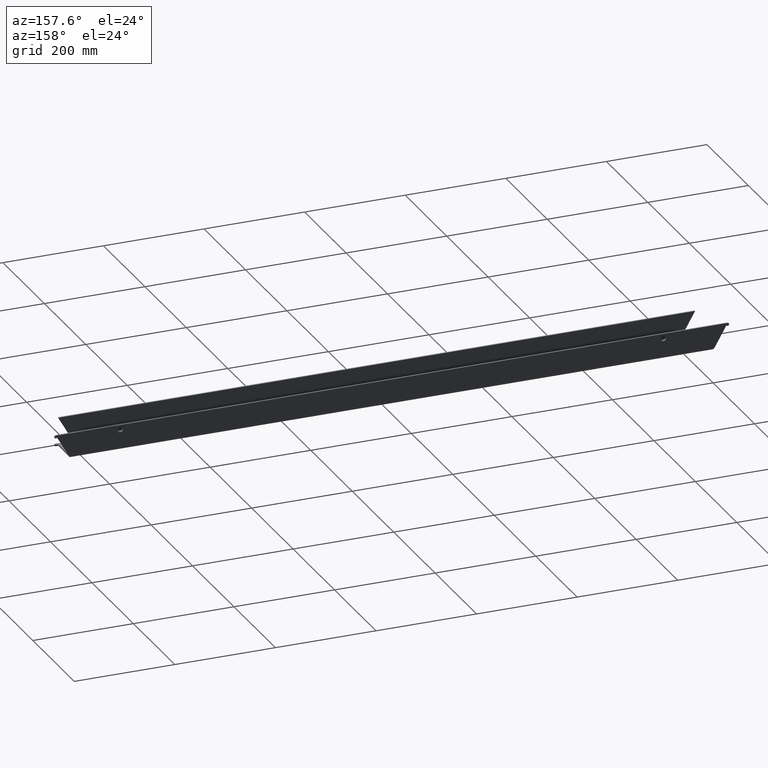
[diagram: clean part render]
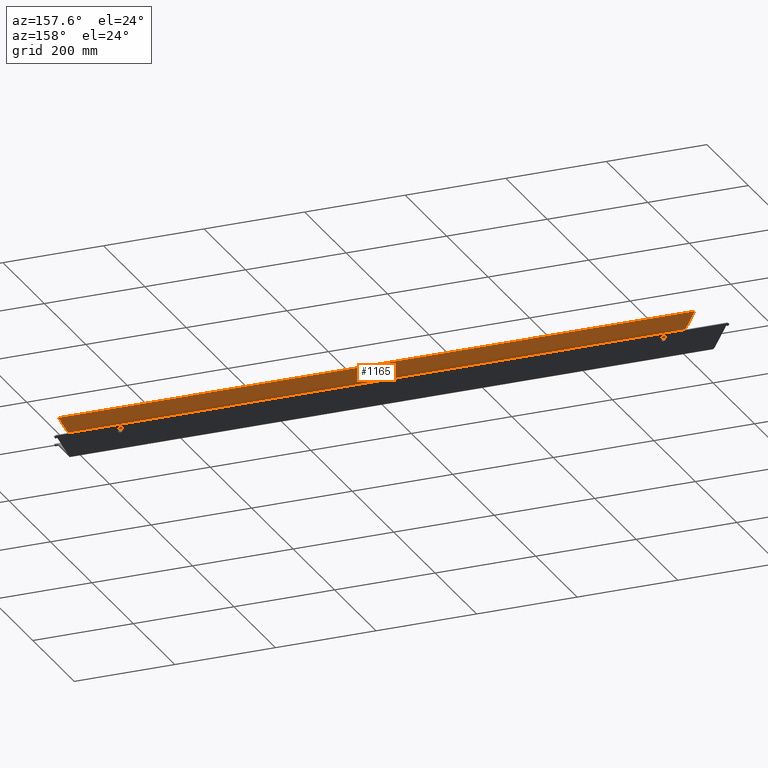
[diagram: same view with one face highlighted and labeled with its STEP entity id]
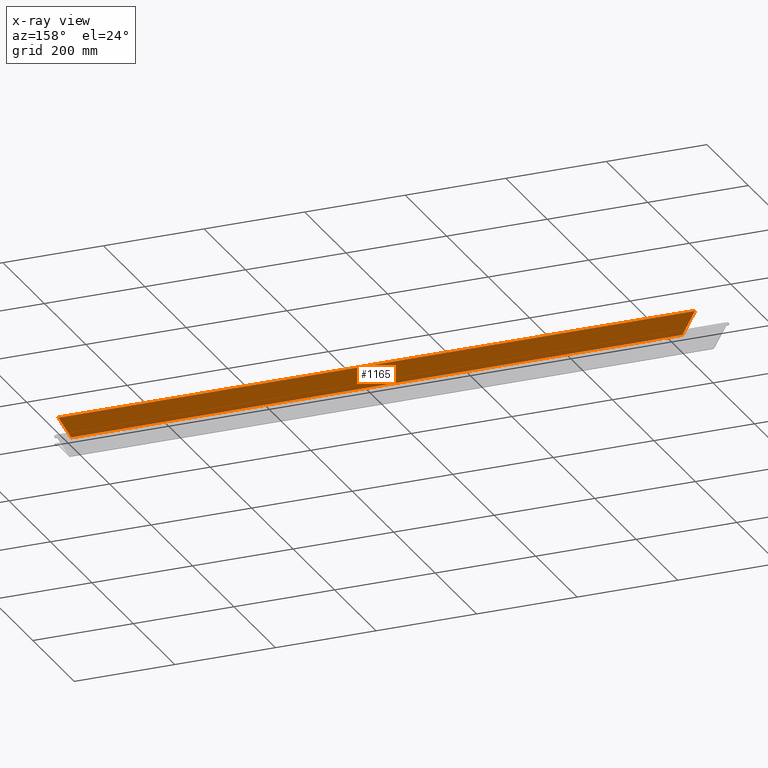
[diagram: x-ray of the same camera — body ghosted, the highlighted face saturated]
A machine part, auxiliary view. The second image highlights one B-rep face of the part: STEP entity #1165.
The next image is the same camera in x-ray: the body ghosted, the highlighted face saturated — about 0% of this face is hidden behind the body in this view.
In plain terms, the highlighted planar face has unit normal (0, 1, 0).
Its self-contained STEP definition (entity closure, byte-faithful):
#16 = EDGE_CURVE ( 'NONE', #1793, #1510, #1124, .T. ) ;
#31 = EDGE_CURVE ( 'NONE', #244, #1372, #760, .T. ) ;
#155 = CARTESIAN_POINT ( 'NONE',  ( 1090.972523324353915, -1166.805262667903662, -1210.499999999999773 ) ) ;
#163 = EDGE_CURVE ( 'NONE', #2236, #244, #1472, .T. ) ;
#198 = VERTEX_POINT ( 'NONE', #1076 ) ;
#244 = VERTEX_POINT ( 'NONE', #277 ) ;
#268 = CARTESIAN_POINT ( 'NONE',  ( 613.4639947775447126, -1166.805262667903662, -1254.500000000000000 ) ) ;
#277 = CARTESIAN_POINT ( 'NONE',  ( -633.0939039299922797, -1166.805262667903662, -1210.499999999999773 ) ) ;
#327 = CARTESIAN_POINT ( 'NONE',  ( 608.4639947775447126, -1166.805262667903662, -1254.500000000000000 ) ) ;
#414 = DIRECTION ( 'NONE',  ( 0.000000000000000000, 1.000000000000000000, 0.000000000000000000 ) ) ;
#437 = CARTESIAN_POINT ( 'NONE',  ( 633.0939039299920523, -1166.805262667903662, -1210.500000000000000 ) ) ;
#438 = ORIENTED_EDGE ( 'NONE', *, *, #526, .F. ) ;
#526 = EDGE_CURVE ( 'NONE', #1372, #1793, #1758, .T. ) ;
#537 = ORIENTED_EDGE ( 'NONE', *, *, #1595, .F. ) ;
#548 = DIRECTION ( 'NONE',  ( 0.5000000000000041078, 0.000000000000000000, -0.8660254037844363761 ) ) ;
#626 = DIRECTION ( 'NONE',  ( 0.000000000000000000, 0.000000000000000000, 1.000000000000000000 ) ) ;
#759 = CARTESIAN_POINT ( 'NONE',  ( 725.9129236839734176, -1166.805262667903662, -1049.732741877366834 ) ) ;
#760 = LINE ( 'NONE', #1946, #1499 ) ;
#880 = CARTESIAN_POINT ( 'NONE',  ( -609.1338677586223866, -1166.805262667903662, -1251.999999999999545 ) ) ;
#892 = VECTOR ( 'NONE', #935, 1000.000000000000000 ) ;
#906 = ORIENTED_EDGE ( 'NONE', *, *, #16, .F. ) ;
#926 = CARTESIAN_POINT ( 'NONE',  ( 1090.972523324353915, -1166.805262667903662, -1260.499999999999773 ) ) ;
#935 = DIRECTION ( 'NONE',  ( 1.000000000000000000, 0.000000000000000000, 0.000000000000000000 ) ) ;
#1076 = CARTESIAN_POINT ( 'NONE',  ( 609.1338677586223866, -1166.805262667903662, -1251.999999999999773 ) ) ;
#1124 = LINE ( 'NONE', #2143, #892 ) ;
#1129 = PLANE ( 'NONE',  #2673 ) ;
#1165 = ADVANCED_FACE ( 'NONE', ( #2146 ), #1129, .T. ) ;
#1170 = ORIENTED_EDGE ( 'NONE', *, *, #1464, .F. ) ;
#1372 = VERTEX_POINT ( 'NONE', #880 ) ;
#1464 = EDGE_CURVE ( 'NONE', #1510, #198, #2545, .T. ) ;
#1472 = LINE ( 'NONE', #155, #1674 ) ;
#1499 = VECTOR ( 'NONE', #548, 1000.000000000000000 ) ;
#1510 = VERTEX_POINT ( 'NONE', #327 ) ;
#1595 = EDGE_CURVE ( 'NONE', #198, #2236, #1829, .T. ) ;
#1674 = VECTOR ( 'NONE', #2097, 1000.000000000000000 ) ;
#1758 = CIRCLE ( 'NONE', #2192, 5.000000000000115463 ) ;
#1770 = DIRECTION ( 'NONE',  ( 0.000000000000000000, 1.000000000000000000, 0.000000000000000000 ) ) ;
#1777 = DIRECTION ( 'NONE',  ( 0.000000000000000000, 1.000000000000000000, 0.000000000000000000 ) ) ;
#1793 = VERTEX_POINT ( 'NONE', #2467 ) ;
#1829 = LINE ( 'NONE', #759, #2117 ) ;
#1888 = CARTESIAN_POINT ( 'NONE',  ( -613.4639947775447126, -1166.805262667903662, -1254.499999999999773 ) ) ;
#1946 = CARTESIAN_POINT ( 'NONE',  ( -180.4266620217875925, -1166.805262667903662, -1994.542661907073352 ) ) ;
#2023 = EDGE_LOOP ( 'NONE', ( #438, #2580, #2455, #537, #1170, #906 ) ) ;
#2036 = AXIS2_PLACEMENT_3D ( 'NONE', #268, #1770, #2573 ) ;
#2097 = DIRECTION ( 'NONE',  ( -1.000000000000000000, -0.000000000000000000, -0.000000000000000000 ) ) ;
#2117 = VECTOR ( 'NONE', #2415, 1000.000000000000000 ) ;
#2143 = CARTESIAN_POINT ( 'NONE',  ( 1090.972523324353915, -1166.805262667903662, -1254.499999999999773 ) ) ;
#2146 = FACE_OUTER_BOUND ( 'NONE', #2023, .T. ) ;
#2175 = DIRECTION ( 'NONE',  ( 0.000000000000000000, 0.000000000000000000, 1.000000000000000000 ) ) ;
#2192 = AXIS2_PLACEMENT_3D ( 'NONE', #1888, #414, #626 ) ;
#2236 = VERTEX_POINT ( 'NONE', #437 ) ;
#2415 = DIRECTION ( 'NONE',  ( 0.5000000000000041078, 0.000000000000000000, 0.8660254037844363761 ) ) ;
#2455 = ORIENTED_EDGE ( 'NONE', *, *, #163, .F. ) ;
#2467 = CARTESIAN_POINT ( 'NONE',  ( -608.4639947775445989, -1166.805262667903662, -1254.499999999999773 ) ) ;
#2545 = CIRCLE ( 'NONE', #2036, 5.000000000000115463 ) ;
#2573 = DIRECTION ( 'NONE',  ( 0.000000000000000000, 0.000000000000000000, 1.000000000000000000 ) ) ;
#2580 = ORIENTED_EDGE ( 'NONE', *, *, #31, .F. ) ;
#2673 = AXIS2_PLACEMENT_3D ( 'NONE', #926, #1777, #2175 ) ;